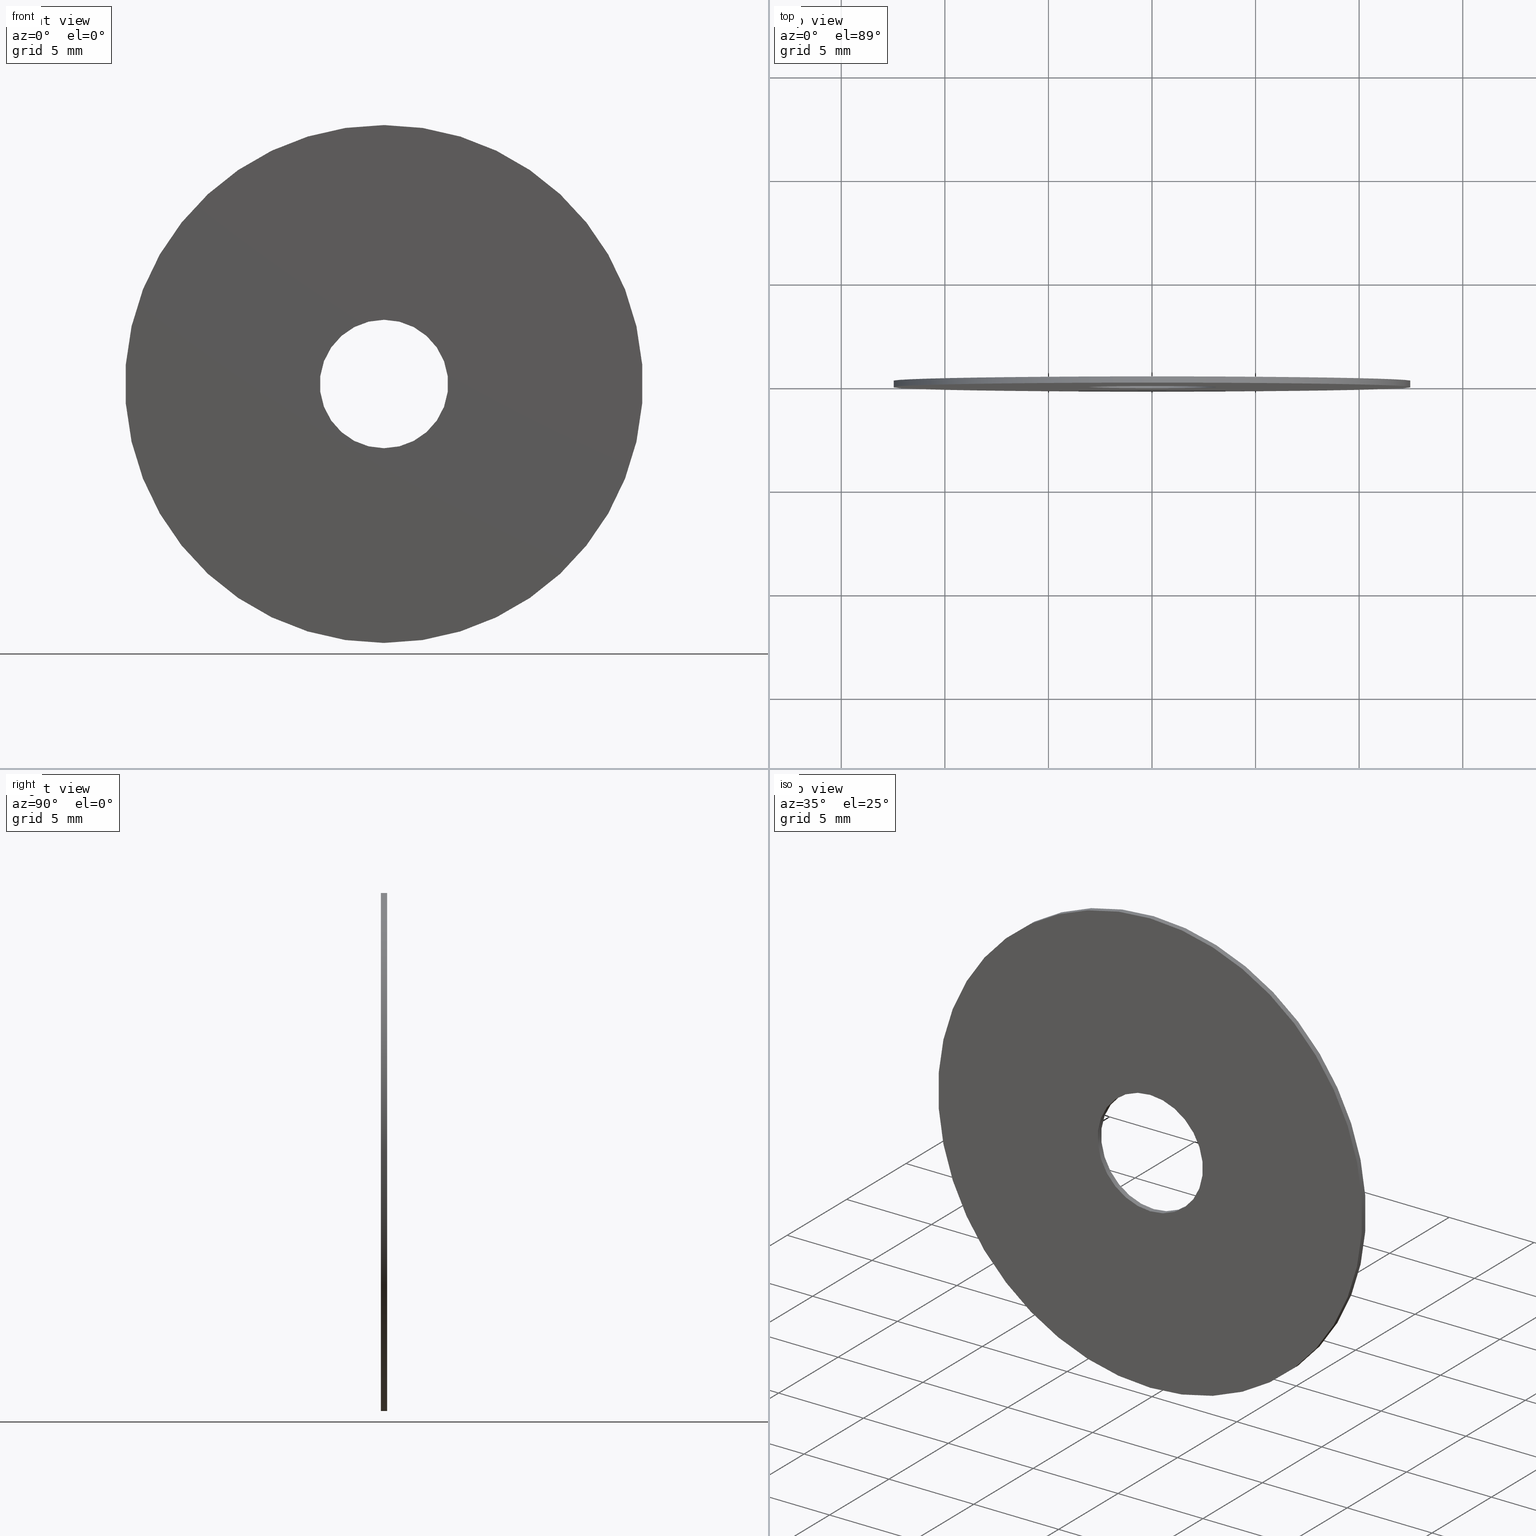
[diagram: canonical four-view strip — front | top / right | iso, engineering-drawing reading convention]
A machine part, canonical four-view strip (front | top / right | iso — engineering-drawing reading convention). The complete STEP part file that produces these views, byte-faithful:
ISO-10303-21;
HEADER;
FILE_DESCRIPTION (( 'STEP AP203' ),
    '1' );
FILE_NAME ('1.4.2.130-ZGH-25-DK0.3.STEP',
    '2024-04-06T05:15:24',
    ( '' ),
    ( '' ),
    'SwSTEP 2.0',
    'SolidWorks 2021',
    '' );
FILE_SCHEMA (( 'CONFIG_CONTROL_DESIGN' ));
ENDSEC;

DATA;
#1 = ORIENTED_EDGE ( 'NONE', *, *, #9, .T. ) ;
#2 = CARTESIAN_POINT ( 'NONE',  ( 0.000000000000000000, 0.1499999999999999944, 0.000000000000000000 ) ) ;
#3 = CLOSED_SHELL ( 'NONE', ( #188, #238, #248, #49, #74, #67 ) ) ;
#4 = APPROVAL ( #65, 'δָ��' ) ;
#5 = DIRECTION ( 'NONE',  ( 0.000000000000000000, 0.000000000000000000, 1.000000000000000000 ) ) ;
#6 = APPLICATION_CONTEXT ( 'configuration controlled 3d designs of mechanical parts and assemblies' ) ;
#7 = PERSON_AND_ORGANIZATION ( #199, #99 ) ;
#8 = CARTESIAN_POINT ( 'NONE',  ( 1.530808498934191521E-15, 0.1499999999999999944, 12.50000000000000000 ) ) ;
#9 = EDGE_CURVE ( 'NONE', #79, #55, #168, .T. ) ;
#10 = PERSON_AND_ORGANIZATION_ROLE ( 'design_owner' ) ;
#11 = AXIS2_PLACEMENT_3D ( 'NONE', #75, #185, #60 ) ;
#12 = AXIS2_PLACEMENT_3D ( 'NONE', #191, #159, #47 ) ;
#13 = ORIENTED_EDGE ( 'NONE', *, *, #35, .F. ) ;
#14 = ORIENTED_EDGE ( 'NONE', *, *, #52, .F. ) ;
#15 = ORIENTED_EDGE ( 'NONE', *, *, #142, .F. ) ;
#16 = ORIENTED_EDGE ( 'NONE', *, *, #194, .F. ) ;
#17 = CARTESIAN_POINT ( 'NONE',  ( 0.000000000000000000, 0.1499999999999999944, -12.50000000000000000 ) ) ;
#18 = DATE_AND_TIME ( #145, #222 ) ;
#19 = ORIENTED_EDGE ( 'NONE', *, *, #177, .T. ) ;
#20 = CARTESIAN_POINT ( 'NONE',  ( 3.796405077356794918E-16, 0.1499999999999999944, -3.100000000000000089 ) ) ;
#21 = ORIENTED_EDGE ( 'NONE', *, *, #209, .F. ) ;
#22 = APPROVAL ( #71, 'δָ��' ) ;
#23 = CYLINDRICAL_SURFACE ( 'NONE', #11, 3.100000000000000089 ) ;
#24 = CARTESIAN_POINT ( 'NONE',  ( 0.000000000000000000, 0.1499999999999999944, 0.000000000000000000 ) ) ;
#25 = DIRECTION ( 'NONE',  ( 0.000000000000000000, 1.000000000000000000, 0.000000000000000000 ) ) ;
#26 = APPROVAL_PERSON_ORGANIZATION ( #183, #22, #163 ) ;
#27 = CARTESIAN_POINT ( 'NONE',  ( 0.000000000000000000, -0.1499999999999999944, 0.000000000000000000 ) ) ;
#28 = CARTESIAN_POINT ( 'NONE',  ( 0.000000000000000000, 0.1499999999999999944, 0.000000000000000000 ) ) ;
#29 = CC_DESIGN_PERSON_AND_ORGANIZATION_ASSIGNMENT ( #91, #51, ( #128 ) ) ;
#30 = CALENDAR_DATE ( 2024, 6, 4 ) ;
#31 = APPROVAL_PERSON_ORGANIZATION ( #236, #4, #141 ) ;
#32 = VERTEX_POINT ( 'NONE', #210 ) ;
#33 = PERSON_AND_ORGANIZATION ( #199, #99 ) ;
#34 = EDGE_LOOP ( 'NONE', ( #14, #45, #19, #15 ) ) ;
#35 = EDGE_CURVE ( 'NONE', #32, #70, #175, .T. ) ;
#36 = LOCAL_TIME ( 13, 15, 24.00000000000000000, #144 ) ;
#37 = AXIS2_PLACEMENT_3D ( 'NONE', #54, #135, #116 ) ;
#38 = CARTESIAN_POINT ( 'NONE',  ( 0.000000000000000000, -0.1499999999999999944, 3.100000000000000089 ) ) ;
#39 = DIRECTION ( 'NONE',  ( 0.000000000000000000, 0.000000000000000000, 1.000000000000000000 ) ) ;
#40 = APPROVAL_DATE_TIME ( #197, #22 ) ;
#41 = CARTESIAN_POINT ( 'NONE',  ( 0.000000000000000000, -0.1499999999999999944, 0.000000000000000000 ) ) ;
#42 = LOCAL_TIME ( 13, 15, 24.00000000000000000, #228 ) ;
#43 = CARTESIAN_POINT ( 'NONE',  ( 0.000000000000000000, 0.1499999999999999944, 0.000000000000000000 ) ) ;
#44 = PRODUCT_DEFINITION ( 'δ֪', '', #128, #88 ) ;
#45 = ORIENTED_EDGE ( 'NONE', *, *, #244, .T. ) ;
#46 = DIRECTION ( 'NONE',  ( 0.000000000000000000, 0.000000000000000000, 1.000000000000000000 ) ) ;
#47 = DIRECTION ( 'NONE',  ( 1.000000000000000000, 0.000000000000000000, 0.000000000000000000 ) ) ;
#48 = FACE_OUTER_BOUND ( 'NONE', #127, .T. ) ;
#49 = ADVANCED_FACE ( 'NONE', ( #187, #178 ), #189, .T. ) ;
#50 = AXIS2_PLACEMENT_3D ( 'NONE', #111, #245, #58 ) ;
#51 = PERSON_AND_ORGANIZATION_ROLE ( 'design_supplier' ) ;
#52 = EDGE_CURVE ( 'NONE', #198, #223, #119, .T. ) ;
#53 = ORIENTED_EDGE ( 'NONE', *, *, #142, .T. ) ;
#54 = CARTESIAN_POINT ( 'NONE',  ( 0.000000000000000000, -0.1499999999999999944, 0.000000000000000000 ) ) ;
#55 = VERTEX_POINT ( 'NONE', #77 ) ;
#56 = CALENDAR_DATE ( 2024, 6, 4 ) ;
#57 = FACE_BOUND ( 'NONE', #243, .T. ) ;
#58 = DIRECTION ( 'NONE',  ( 0.000000000000000000, 0.000000000000000000, 1.000000000000000000 ) ) ;
#59 = CIRCLE ( 'NONE', #124, 3.100000000000000089 ) ;
#60 = DIRECTION ( 'NONE',  ( 0.000000000000000000, 0.000000000000000000, 1.000000000000000000 ) ) ;
#61 = PRODUCT_DEFINITION_SHAPE ( 'NONE', 'NONE',  #44 ) ;
#62 = MECHANICAL_CONTEXT ( 'NONE', #215, 'mechanical' ) ;
#63 = AXIS2_PLACEMENT_3D ( 'NONE', #227, #133, #39 ) ;
#64 =( NAMED_UNIT ( * ) PLANE_ANGLE_UNIT ( ) SI_UNIT ( $, .RADIAN. ) );
#65 = APPROVAL_STATUS ( 'not_yet_approved' ) ;
#66 = DIRECTION ( 'NONE',  ( -0.000000000000000000, -1.000000000000000000, -0.000000000000000000 ) ) ;
#67 = ADVANCED_FACE ( 'NONE', ( #155 ), #23, .F. ) ;
#68 = VECTOR ( 'NONE', #110, 1000.000000000000000 ) ;
#69 = COORDINATED_UNIVERSAL_TIME_OFFSET ( 8, 0, .AHEAD. ) ;
#70 = VERTEX_POINT ( 'NONE', #137 ) ;
#71 = APPROVAL_STATUS ( 'not_yet_approved' ) ;
#72 = CIRCLE ( 'NONE', #102, 3.100000000000000089 ) ;
#73 = ORIENTED_EDGE ( 'NONE', *, *, #9, .F. ) ;
#74 = ADVANCED_FACE ( 'NONE', ( #57, #225 ), #208, .F. ) ;
#75 = CARTESIAN_POINT ( 'NONE',  ( 0.000000000000000000, -0.1499999999999999944, 0.000000000000000000 ) ) ;
#76 = DATE_AND_TIME ( #30, #36 ) ;
#77 = CARTESIAN_POINT ( 'NONE',  ( 1.530808498934191521E-15, 0.1499999999999999944, 12.50000000000000000 ) ) ;
#78 = ORIENTED_EDGE ( 'NONE', *, *, #169, .F. ) ;
#79 = VERTEX_POINT ( 'NONE', #207 ) ;
#80 = CARTESIAN_POINT ( 'NONE',  ( 0.000000000000000000, 0.1499999999999999944, 3.100000000000000089 ) ) ;
#81 = DIRECTION ( 'NONE',  ( 0.000000000000000000, 1.000000000000000000, 0.000000000000000000 ) ) ;
#82 = CYLINDRICAL_SURFACE ( 'NONE', #201, 12.50000000000000000 ) ;
#83 = DIRECTION ( 'NONE',  ( 0.000000000000000000, 1.000000000000000000, 0.000000000000000000 ) ) ;
#84 = CC_DESIGN_APPROVAL ( #131, ( #128 ) ) ;
#85 = DATE_TIME_ROLE ( 'creation_date' ) ;
#86 = ORIENTED_EDGE ( 'NONE', *, *, #209, .T. ) ;
#87 = CALENDAR_DATE ( 2024, 6, 4 ) ;
#88 = DESIGN_CONTEXT ( 'detailed design', #6, 'design' ) ;
#89 = CC_DESIGN_APPROVAL ( #4, ( #44 ) ) ;
#90 = DIRECTION ( 'NONE',  ( 0.000000000000000000, 0.000000000000000000, 1.000000000000000000 ) ) ;
#91 = PERSON_AND_ORGANIZATION ( #199, #99 ) ;
#92 = AXIS2_PLACEMENT_3D ( 'NONE', #157, #192, #103 ) ;
#93 = VECTOR ( 'NONE', #150, 1000.000000000000000 ) ;
#94 = CARTESIAN_POINT ( 'NONE',  ( 0.000000000000000000, -0.1499999999999999944, 0.000000000000000000 ) ) ;
#95 = ORIENTED_EDGE ( 'NONE', *, *, #177, .F. ) ;
#96 = ORIENTED_EDGE ( 'NONE', *, *, #158, .F. ) ;
#97 = DIRECTION ( 'NONE',  ( 0.000000000000000000, 1.000000000000000000, 0.000000000000000000 ) ) ;
#98 = AXIS2_PLACEMENT_3D ( 'NONE', #2, #205, #153 ) ;
#99 = ORGANIZATION ( 'δָ��', 'δָ��', '' ) ;
#100 = LINE ( 'NONE', #8, #231 ) ;
#101 =( LENGTH_UNIT ( ) NAMED_UNIT ( * ) SI_UNIT ( .MILLI., .METRE. ) );
#102 = AXIS2_PLACEMENT_3D ( 'NONE', #24, #83, #46 ) ;
#103 = DIRECTION ( 'NONE',  ( 0.000000000000000000, 0.000000000000000000, -1.000000000000000000 ) ) ;
#104 = DIRECTION ( 'NONE',  ( 0.000000000000000000, 0.000000000000000000, 1.000000000000000000 ) ) ;
#105 = APPROVAL_DATE_TIME ( #171, #4 ) ;
#106 = ORIENTED_EDGE ( 'NONE', *, *, #52, .T. ) ;
#107 = CC_DESIGN_DATE_AND_TIME_ASSIGNMENT ( #217, #206, ( #212 ) ) ;
#108 = COORDINATED_UNIVERSAL_TIME_OFFSET ( 8, 0, .AHEAD. ) ;
#109 = EDGE_CURVE ( 'NONE', #223, #198, #179, .T. ) ;
#110 = DIRECTION ( 'NONE',  ( -0.000000000000000000, 1.000000000000000000, -0.000000000000000000 ) ) ;
#111 = CARTESIAN_POINT ( 'NONE',  ( 0.000000000000000000, -0.1499999999999999944, 0.000000000000000000 ) ) ;
#112 = SHAPE_DEFINITION_REPRESENTATION ( #61, #125 ) ;
#113 = CC_DESIGN_SECURITY_CLASSIFICATION ( #212, ( #128 ) ) ;
#114 = ORIENTED_EDGE ( 'NONE', *, *, #158, .T. ) ;
#115 = VERTEX_POINT ( 'NONE', #20 ) ;
#116 = DIRECTION ( 'NONE',  ( 0.000000000000000000, -0.000000000000000000, 1.000000000000000000 ) ) ;
#117 = CC_DESIGN_PERSON_AND_ORGANIZATION_ASSIGNMENT ( #182, #165, ( #128 ) ) ;
#118 = DIRECTION ( 'NONE',  ( 0.000000000000000000, 0.000000000000000000, -1.000000000000000000 ) ) ;
#119 = CIRCLE ( 'NONE', #50, 3.100000000000000089 ) ;
#120 = AXIS2_PLACEMENT_3D ( 'NONE', #139, #81, #213 ) ;
#121 = CYLINDRICAL_SURFACE ( 'NONE', #149, 3.100000000000000089 ) ;
#122 = CYLINDRICAL_SURFACE ( 'NONE', #92, 12.50000000000000000 ) ;
#123 =( NAMED_UNIT ( * ) SI_UNIT ( $, .STERADIAN. ) SOLID_ANGLE_UNIT ( ) );
#124 = AXIS2_PLACEMENT_3D ( 'NONE', #28, #25, #104 ) ;
#125 = ADVANCED_BREP_SHAPE_REPRESENTATION ( '1.4.2.130-ZGH-25-DK0.3', ( #219, #12 ), #190 ) ;
#126 = ORIENTED_EDGE ( 'NONE', *, *, #242, .F. ) ;
#127 = EDGE_LOOP ( 'NONE', ( #126, #73, #114, #186 ) ) ;
#128 = PRODUCT_DEFINITION_FORMATION_WITH_SPECIFIED_SOURCE ( '�κ�', '', #249, .NOT_KNOWN. ) ;
#129 = SECURITY_CLASSIFICATION_LEVEL ( 'unclassified' ) ;
#130 = EDGE_LOOP ( 'NONE', ( #16, #95 ) ) ;
#131 = APPROVAL ( #221, 'δָ��' ) ;
#132 = DIRECTION ( 'NONE',  ( 0.000000000000000000, 1.000000000000000000, 0.000000000000000000 ) ) ;
#133 = DIRECTION ( 'NONE',  ( 0.000000000000000000, 1.000000000000000000, 0.000000000000000000 ) ) ;
#134 = CALENDAR_DATE ( 2024, 6, 4 ) ;
#135 = DIRECTION ( 'NONE',  ( 0.000000000000000000, 1.000000000000000000, 0.000000000000000000 ) ) ;
#136 = APPROVAL_PERSON_ORGANIZATION ( #33, #131, #204 ) ;
#137 = CARTESIAN_POINT ( 'NONE',  ( 0.000000000000000000, -0.1499999999999999944, -12.50000000000000000 ) ) ;
#138 = DIRECTION ( 'NONE',  ( 0.000000000000000000, 1.000000000000000000, 0.000000000000000000 ) ) ;
#139 = CARTESIAN_POINT ( 'NONE',  ( 0.000000000000000000, 0.1499999999999999944, 0.000000000000000000 ) ) ;
#140 = APPLICATION_PROTOCOL_DEFINITION ( 'international standard', 'config_control_design', 1994, #6 ) ;
#141 = APPROVAL_ROLE ( '' ) ;
#142 = EDGE_CURVE ( 'NONE', #223, #172, #203, .T. ) ;
#143 = DIRECTION ( 'NONE',  ( -0.000000000000000000, -1.000000000000000000, -0.000000000000000000 ) ) ;
#144 = COORDINATED_UNIVERSAL_TIME_OFFSET ( 8, 0, .AHEAD. ) ;
#145 = CALENDAR_DATE ( 2024, 6, 4 ) ;
#146 = ORIENTED_EDGE ( 'NONE', *, *, #194, .T. ) ;
#147 = VECTOR ( 'NONE', #235, 1000.000000000000000 ) ;
#148 = ORIENTED_EDGE ( 'NONE', *, *, #109, .F. ) ;
#149 = AXIS2_PLACEMENT_3D ( 'NONE', #27, #180, #162 ) ;
#150 = DIRECTION ( 'NONE',  ( -0.000000000000000000, -1.000000000000000000, -0.000000000000000000 ) ) ;
#151 = PERSON_AND_ORGANIZATION ( #199, #99 ) ;
#152 = ORIENTED_EDGE ( 'NONE', *, *, #244, .F. ) ;
#153 = DIRECTION ( 'NONE',  ( 0.000000000000000000, -0.000000000000000000, 1.000000000000000000 ) ) ;
#154 = CC_DESIGN_DATE_AND_TIME_ASSIGNMENT ( #18, #85, ( #44 ) ) ;
#155 = FACE_OUTER_BOUND ( 'NONE', #170, .T. ) ;
#156 = AXIS2_PLACEMENT_3D ( 'NONE', #43, #132, #90 ) ;
#157 = CARTESIAN_POINT ( 'NONE',  ( 0.000000000000000000, 0.1499999999999999944, 0.000000000000000000 ) ) ;
#158 = EDGE_CURVE ( 'NONE', #79, #70, #184, .T. ) ;
#159 = DIRECTION ( 'NONE',  ( 0.000000000000000000, 0.000000000000000000, 1.000000000000000000 ) ) ;
#160 = CARTESIAN_POINT ( 'NONE',  ( 3.796405077356794918E-16, -0.1499999999999999944, -3.100000000000000089 ) ) ;
#161 = FACE_OUTER_BOUND ( 'NONE', #34, .T. ) ;
#162 = DIRECTION ( 'NONE',  ( 0.000000000000000000, 0.000000000000000000, 1.000000000000000000 ) ) ;
#163 = APPROVAL_ROLE ( '' ) ;
#164 = CC_DESIGN_PERSON_AND_ORGANIZATION_ASSIGNMENT ( #7, #10, ( #249 ) ) ;
#165 = PERSON_AND_ORGANIZATION_ROLE ( 'creator' ) ;
#166 = PERSON_AND_ORGANIZATION_ROLE ( 'classification_officer' ) ;
#167 = CC_DESIGN_APPROVAL ( #22, ( #212 ) ) ;
#168 = CIRCLE ( 'NONE', #156, 12.50000000000000000 ) ;
#169 = EDGE_CURVE ( 'NONE', #70, #32, #176, .T. ) ;
#170 = EDGE_LOOP ( 'NONE', ( #152, #148, #53, #146 ) ) ;
#171 = DATE_AND_TIME ( #87, #216 ) ;
#172 = VERTEX_POINT ( 'NONE', #80 ) ;
#173 = EDGE_LOOP ( 'NONE', ( #78, #13 ) ) ;
#174 = ORIENTED_EDGE ( 'NONE', *, *, #35, .T. ) ;
#175 = CIRCLE ( 'NONE', #200, 12.50000000000000000 ) ;
#176 = CIRCLE ( 'NONE', #63, 12.50000000000000000 ) ;
#177 = EDGE_CURVE ( 'NONE', #115, #172, #59, .T. ) ;
#178 = FACE_OUTER_BOUND ( 'NONE', #247, .T. ) ;
#179 = CIRCLE ( 'NONE', #241, 3.100000000000000089 ) ;
#180 = DIRECTION ( 'NONE',  ( -0.000000000000000000, 1.000000000000000000, -0.000000000000000000 ) ) ;
#181 = CARTESIAN_POINT ( 'NONE',  ( 0.000000000000000000, -0.1499999999999999944, 3.100000000000000089 ) ) ;
#182 = PERSON_AND_ORGANIZATION ( #199, #99 ) ;
#183 = PERSON_AND_ORGANIZATION ( #199, #99 ) ;
#184 = LINE ( 'NONE', #17, #93 ) ;
#185 = DIRECTION ( 'NONE',  ( -0.000000000000000000, 1.000000000000000000, -0.000000000000000000 ) ) ;
#186 = ORIENTED_EDGE ( 'NONE', *, *, #169, .T. ) ;
#187 = FACE_BOUND ( 'NONE', #130, .T. ) ;
#188 = ADVANCED_FACE ( 'NONE', ( #161 ), #121, .F. ) ;
#189 = PLANE ( 'NONE',  #98 ) ;
#190 =( GEOMETRIC_REPRESENTATION_CONTEXT ( 3 ) GLOBAL_UNCERTAINTY_ASSIGNED_CONTEXT ( ( #220 ) ) GLOBAL_UNIT_ASSIGNED_CONTEXT ( ( #101, #64, #123 ) ) REPRESENTATION_CONTEXT ( 'NONE', 'WORKASPACE' ) );
#191 = CARTESIAN_POINT ( 'NONE',  ( 0.000000000000000000, 0.000000000000000000, 0.000000000000000000 ) ) ;
#192 = DIRECTION ( 'NONE',  ( -0.000000000000000000, -1.000000000000000000, -0.000000000000000000 ) ) ;
#193 = CARTESIAN_POINT ( 'NONE',  ( 3.796405077356794918E-16, -0.1499999999999999944, -3.100000000000000089 ) ) ;
#194 = EDGE_CURVE ( 'NONE', #172, #115, #72, .T. ) ;
#195 = COORDINATED_UNIVERSAL_TIME_OFFSET ( 8, 0, .AHEAD. ) ;
#196 = CIRCLE ( 'NONE', #120, 12.50000000000000000 ) ;
#197 = DATE_AND_TIME ( #134, #226 ) ;
#198 = VERTEX_POINT ( 'NONE', #160 ) ;
#199 = PERSON ( 'δָ��', 'δָ��', 'δָ��', ('δָ��'), ('δָ��'), ('δָ��') ) ;
#200 = AXIS2_PLACEMENT_3D ( 'NONE', #94, #138, #229 ) ;
#201 = AXIS2_PLACEMENT_3D ( 'NONE', #237, #66, #118 ) ;
#202 = CC_DESIGN_PERSON_AND_ORGANIZATION_ASSIGNMENT ( #240, #239, ( #44 ) ) ;
#203 = LINE ( 'NONE', #38, #68 ) ;
#204 = APPROVAL_ROLE ( '' ) ;
#205 = DIRECTION ( 'NONE',  ( 0.000000000000000000, 1.000000000000000000, 0.000000000000000000 ) ) ;
#206 = DATE_TIME_ROLE ( 'classification_date' ) ;
#207 = CARTESIAN_POINT ( 'NONE',  ( 0.000000000000000000, 0.1499999999999999944, -12.50000000000000000 ) ) ;
#208 = PLANE ( 'NONE',  #37 ) ;
#209 = EDGE_CURVE ( 'NONE', #55, #79, #196, .T. ) ;
#210 = CARTESIAN_POINT ( 'NONE',  ( 1.530808498934191521E-15, -0.1499999999999999944, 12.50000000000000000 ) ) ;
#211 = LINE ( 'NONE', #193, #147 ) ;
#212 = SECURITY_CLASSIFICATION ( '', '', #129 ) ;
#213 = DIRECTION ( 'NONE',  ( 0.000000000000000000, 0.000000000000000000, 1.000000000000000000 ) ) ;
#214 = FACE_OUTER_BOUND ( 'NONE', #232, .T. ) ;
#215 = APPLICATION_CONTEXT ( 'configuration controlled 3d designs of mechanical parts and assemblies' ) ;
#216 = LOCAL_TIME ( 13, 15, 24.00000000000000000, #108 ) ;
#217 = DATE_AND_TIME ( #56, #42 ) ;
#218 = ORIENTED_EDGE ( 'NONE', *, *, #242, .T. ) ;
#219 = MANIFOLD_SOLID_BREP ( '�г�-����3', #3 ) ;
#220 = UNCERTAINTY_MEASURE_WITH_UNIT (LENGTH_MEASURE( 1.000000000000000082E-05 ), #101, 'distance_accuracy_value', 'NONE');
#221 = APPROVAL_STATUS ( 'not_yet_approved' ) ;
#222 = LOCAL_TIME ( 13, 15, 24.00000000000000000, #69 ) ;
#223 = VERTEX_POINT ( 'NONE', #181 ) ;
#224 = CC_DESIGN_PERSON_AND_ORGANIZATION_ASSIGNMENT ( #151, #166, ( #212 ) ) ;
#225 = FACE_OUTER_BOUND ( 'NONE', #173, .T. ) ;
#226 = LOCAL_TIME ( 13, 15, 24.00000000000000000, #195 ) ;
#227 = CARTESIAN_POINT ( 'NONE',  ( 0.000000000000000000, -0.1499999999999999944, 0.000000000000000000 ) ) ;
#228 = COORDINATED_UNIVERSAL_TIME_OFFSET ( 8, 0, .AHEAD. ) ;
#229 = DIRECTION ( 'NONE',  ( 0.000000000000000000, 0.000000000000000000, 1.000000000000000000 ) ) ;
#230 = ORIENTED_EDGE ( 'NONE', *, *, #109, .T. ) ;
#231 = VECTOR ( 'NONE', #143, 1000.000000000000000 ) ;
#232 = EDGE_LOOP ( 'NONE', ( #21, #218, #174, #96 ) ) ;
#233 = PRODUCT_RELATED_PRODUCT_CATEGORY ( 'detail', '', ( #249 ) ) ;
#234 = APPLICATION_PROTOCOL_DEFINITION ( 'international standard', 'config_control_design', 1994, #215 ) ;
#235 = DIRECTION ( 'NONE',  ( -0.000000000000000000, 1.000000000000000000, -0.000000000000000000 ) ) ;
#236 = PERSON_AND_ORGANIZATION ( #199, #99 ) ;
#237 = CARTESIAN_POINT ( 'NONE',  ( 0.000000000000000000, 0.1499999999999999944, 0.000000000000000000 ) ) ;
#238 = ADVANCED_FACE ( 'NONE', ( #214 ), #82, .T. ) ;
#239 = PERSON_AND_ORGANIZATION_ROLE ( 'creator' ) ;
#240 = PERSON_AND_ORGANIZATION ( #199, #99 ) ;
#241 = AXIS2_PLACEMENT_3D ( 'NONE', #41, #97, #5 ) ;
#242 = EDGE_CURVE ( 'NONE', #55, #32, #100, .T. ) ;
#243 = EDGE_LOOP ( 'NONE', ( #230, #106 ) ) ;
#244 = EDGE_CURVE ( 'NONE', #198, #115, #211, .T. ) ;
#245 = DIRECTION ( 'NONE',  ( 0.000000000000000000, 1.000000000000000000, 0.000000000000000000 ) ) ;
#246 = APPROVAL_DATE_TIME ( #76, #131 ) ;
#247 = EDGE_LOOP ( 'NONE', ( #1, #86 ) ) ;
#248 = ADVANCED_FACE ( 'NONE', ( #48 ), #122, .T. ) ;
#249 = PRODUCT ( '1.4.2.130-ZGH-25-DK0.3', '1.4.2.130-ZGH-25-DK0.3', '', ( #62 ) ) ;
ENDSEC;
END-ISO-10303-21;
